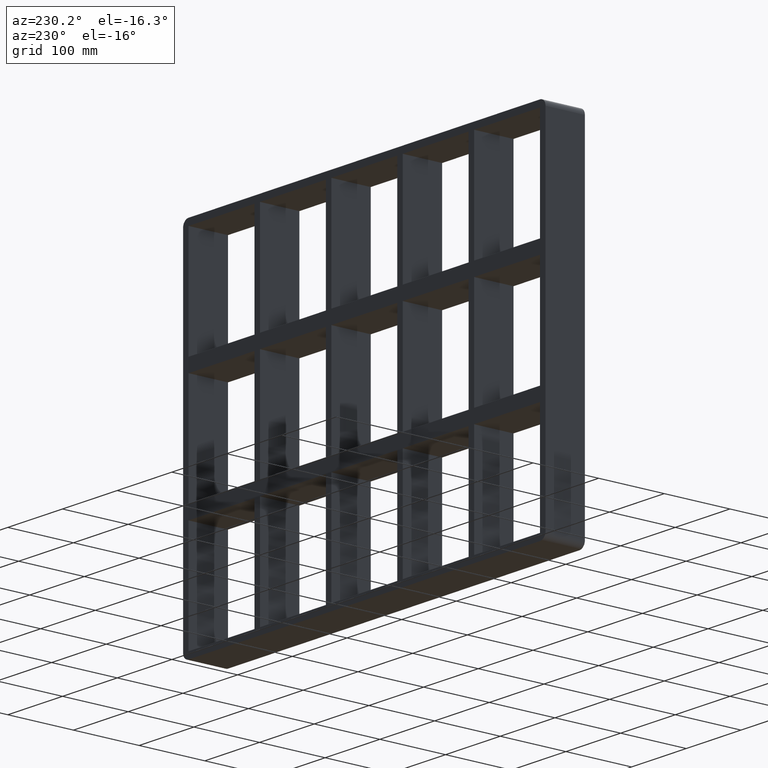
[diagram: clean part render]
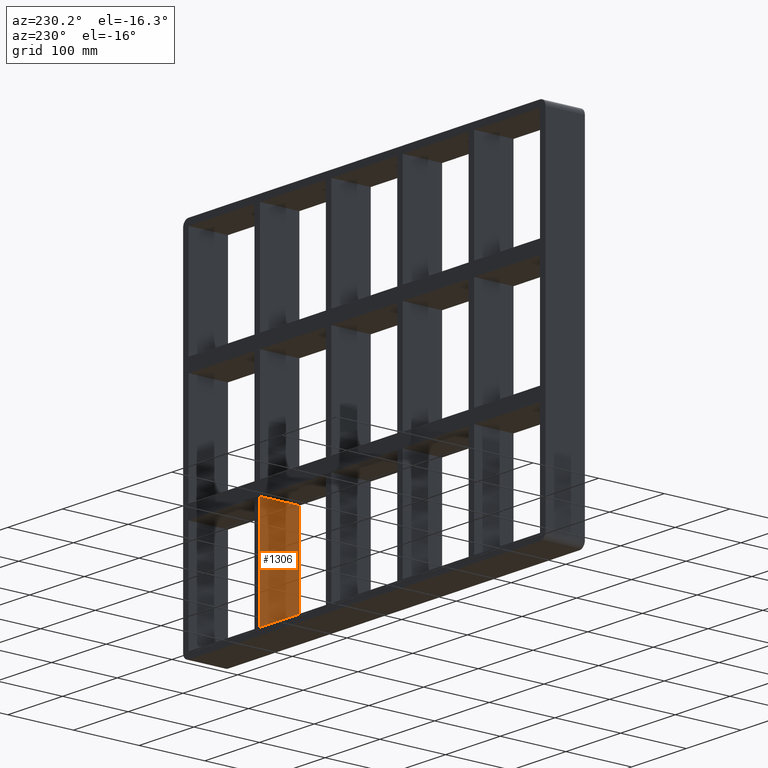
[diagram: same view with one face highlighted and labeled with its STEP entity id]
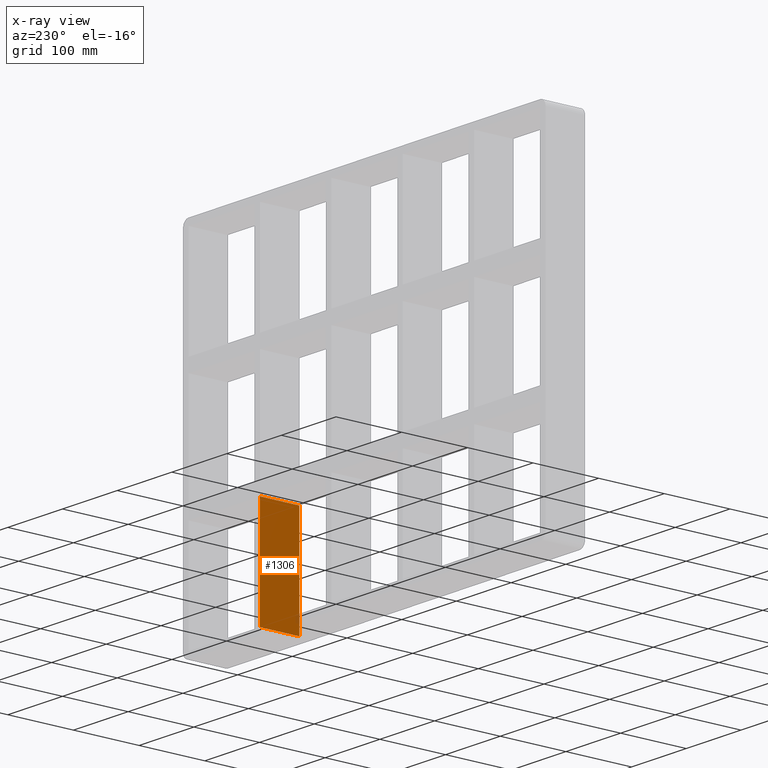
[diagram: x-ray of the same camera — body ghosted, the highlighted face saturated]
A machine part, auxiliary view. The second image highlights one B-rep face of the part: STEP entity #1306.
The next image is the same camera in x-ray: the body ghosted, the highlighted face saturated — about 1% of this face is hidden behind the body in this view.
In plain terms, the highlighted planar face has unit normal (-1, 0, 0).
Its self-contained STEP definition (entity closure, byte-faithful):
#1172=CARTESIAN_POINT('',(190.74999999999875,57.0,-259.25));
#1173=VERTEX_POINT('',#1172);
#1174=CARTESIAN_POINT('',(190.74999999999872,57.0,-99.750000000009294));
#1175=VERTEX_POINT('',#1174);
#1176=CARTESIAN_POINT('',(190.74999999999875,57.0,-259.25));
#1177=DIRECTION('',(0.0,0.0,1.0));
#1178=VECTOR('',#1177,159.49999999999068);
#1179=LINE('',#1176,#1178);
#1180=EDGE_CURVE('',#1173,#1175,#1179,.T.);
#1276=CARTESIAN_POINT('',(190.74999999999875,-3.0,-259.25));
#1277=DIRECTION('',(-1.0,0.0,0.0));
#1278=DIRECTION('',(0.0,0.0,1.0));
#1279=AXIS2_PLACEMENT_3D('',#1276,#1277,#1278);
#1280=PLANE('',#1279);
#1281=CARTESIAN_POINT('',(190.74999999999872,-3.0,-99.750000000009294));
#1282=VERTEX_POINT('',#1281);
#1283=CARTESIAN_POINT('',(190.74999999999875,57.0,-99.750000000009294));
#1284=DIRECTION('',(0.0,-1.0,0.0));
#1285=VECTOR('',#1284,60.0);
#1286=LINE('',#1283,#1285);
#1287=EDGE_CURVE('',#1175,#1282,#1286,.T.);
#1288=ORIENTED_EDGE('',*,*,#1287,.F.);
#1289=ORIENTED_EDGE('',*,*,#1180,.F.);
#1290=CARTESIAN_POINT('',(190.74999999999875,-3.0,-259.25));
#1291=VERTEX_POINT('',#1290);
#1292=CARTESIAN_POINT('',(190.74999999999875,-3.0,-259.25));
#1293=DIRECTION('',(0.0,1.0,0.0));
#1294=VECTOR('',#1293,60.000000000000007);
#1295=LINE('',#1292,#1294);
#1296=EDGE_CURVE('',#1291,#1173,#1295,.T.);
#1297=ORIENTED_EDGE('',*,*,#1296,.F.);
#1298=CARTESIAN_POINT('',(190.74999999999875,-3.0,-259.25));
#1299=DIRECTION('',(0.0,0.0,1.0));
#1300=VECTOR('',#1299,159.49999999999068);
#1301=LINE('',#1298,#1300);
#1302=EDGE_CURVE('',#1291,#1282,#1301,.T.);
#1303=ORIENTED_EDGE('',*,*,#1302,.T.);
#1304=EDGE_LOOP('',(#1288,#1289,#1297,#1303));
#1305=FACE_OUTER_BOUND('',#1304,.T.);
#1306=ADVANCED_FACE('',(#1305),#1280,.T.);